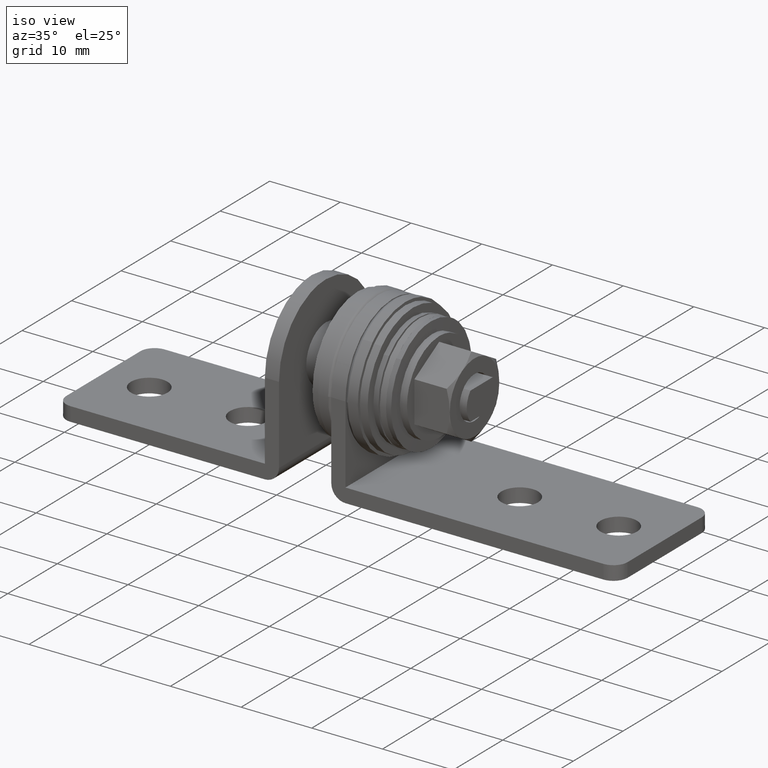
[diagram: clean part render]
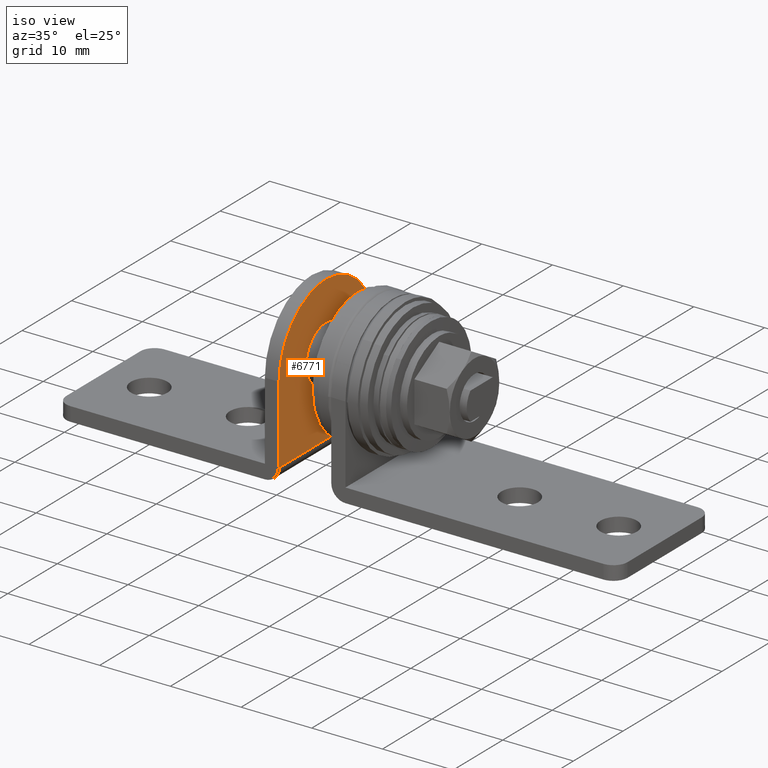
[diagram: same view with one face highlighted and labeled with its STEP entity id]
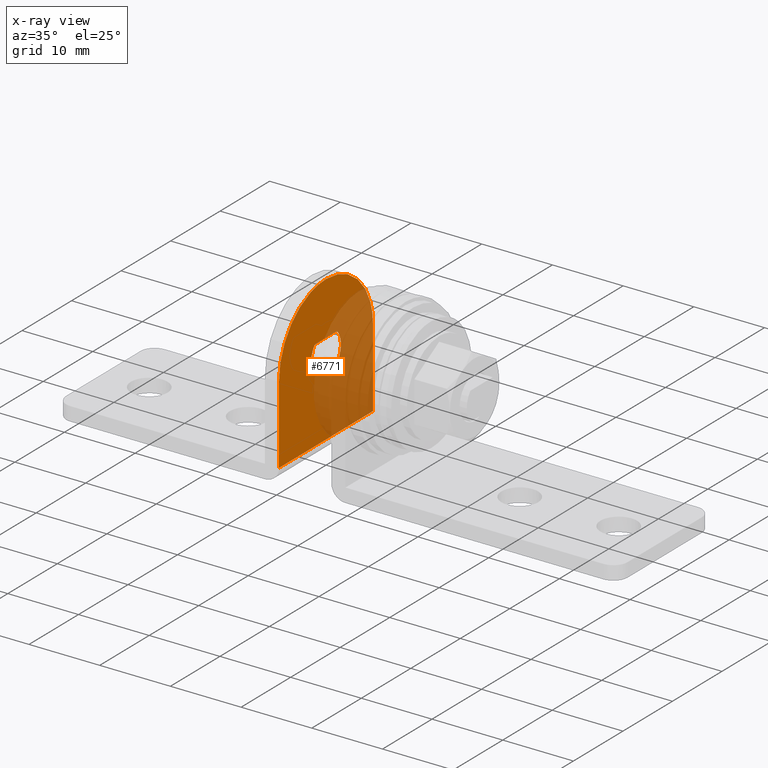
[diagram: x-ray of the same camera — body ghosted, the highlighted face saturated]
A machine part, iso view. The second image highlights one B-rep face of the part: STEP entity #6771.
The next image is the same camera in x-ray: the body ghosted, the highlighted face saturated — about 46% of this face is hidden behind the body in this view.
In plain terms, the highlighted face is a freeform B-spline surface patch.
Its self-contained STEP definition (entity closure, byte-faithful):
#6199=CARTESIAN_POINT('',(0.0,2.240535650240810,2.010000000000000));
#6200=VERTEX_POINT('',#6199);
#6206=CARTESIAN_POINT('',(0.0,-2.240535650240810,2.010000000000000));
#6207=VERTEX_POINT('',#6206);
#6208=CARTESIAN_POINT('',(0.0,-2.240535650240810,2.010000000000000));
#6209=CARTESIAN_POINT('',(0.0,2.240535650240810,2.010000000000000));
#6210=QUASI_UNIFORM_CURVE('',1,(#6208,#6209),.UNSPECIFIED.,.F.,.U.);
#6211=EDGE_CURVE('',#6207,#6200,#6210,.T.);
#6251=CARTESIAN_POINT('',(0.0,-2.240535650240810,-2.010000000000000));
#6252=VERTEX_POINT('',#6251);
#6253=CARTESIAN_POINT('',(0.0,-2.240535650240810,-2.010000000000000));
#6254=CARTESIAN_POINT('',(0.0,-2.370687013951511,-1.864956724034428));
#6255=CARTESIAN_POINT('',(0.0,-2.602659146373904,-1.549466092638324));
#6256=CARTESIAN_POINT('',(0.0,-2.857712093251740,-1.007575465955901));
#6257=CARTESIAN_POINT('',(0.0,-3.008339650027696,-0.391910474040547));
#6258=CARTESIAN_POINT('',(0.0,-3.024191929168532,0.300212688513874));
#6259=CARTESIAN_POINT('',(0.0,-2.882335169588626,0.943330478778173));
#6260=CARTESIAN_POINT('',(0.0,-2.614601133151809,1.529391881180201));
#6261=CARTESIAN_POINT('',(0.0,-2.386004348418033,1.847899174121345));
#6262=CARTESIAN_POINT('',(0.0,-2.240535650240810,2.010000000000000));
#6263=B_SPLINE_CURVE_WITH_KNOTS('',3,(#6253,#6254,#6255,#6256,#6257,#6258,#6259,#6260,#6261,#6262),.UNSPECIFIED.,.F.,.U.,(4,1,1,1,1,1,1,4),(0.000000084393577,0.584629031298991,1.169264270065292,1.788305855278447,2.476067994577040,3.232670253665715,3.748529401718613,4.401934657445459),.UNSPECIFIED.);
#6264=EDGE_CURVE('',#6252,#6207,#6263,.T.);
#6287=CARTESIAN_POINT('',(0.0,2.240535650240810,-2.010000000000000));
#6288=VERTEX_POINT('',#6287);
#6289=CARTESIAN_POINT('',(0.0,2.240535650240810,-2.010000000000000));
#6290=CARTESIAN_POINT('',(0.0,-2.240535650240810,-2.010000000000000));
#6291=QUASI_UNIFORM_CURVE('',1,(#6289,#6290),.UNSPECIFIED.,.F.,.U.);
#6292=EDGE_CURVE('',#6288,#6252,#6291,.T.);
#6329=CARTESIAN_POINT('',(0.0,2.240535650240810,2.010000000000000));
#6330=CARTESIAN_POINT('',(0.0,2.370686949797442,1.864956642935068));
#6331=CARTESIAN_POINT('',(0.0,2.602654257858082,1.549464766257817));
#6332=CARTESIAN_POINT('',(0.0,2.877364688132855,0.965900686233380));
#6333=CARTESIAN_POINT('',(0.0,3.024193972510522,0.300209867733758));
#6334=CARTESIAN_POINT('',(0.0,3.009650152156564,-0.334227588496530));
#6335=CARTESIAN_POINT('',(0.0,2.881830274065986,-0.929912114117821));
#6336=CARTESIAN_POINT('',(0.0,2.648255119957206,-1.482564819581117));
#6337=CARTESIAN_POINT('',(0.0,2.386000152132124,-1.847896461484912));
#6338=CARTESIAN_POINT('',(0.0,2.240535650240810,-2.010000000000000));
#6339=B_SPLINE_CURVE_WITH_KNOTS('',3,(#6329,#6330,#6331,#6332,#6333,#6334,#6335,#6336,#6337,#6338),.UNSPECIFIED.,.F.,.U.,(4,1,1,1,1,1,1,4),(0.000000084394236,0.584629031299590,1.169264270065828,1.925866977572698,2.613628944511989,3.060714132455869,3.748529401718662,4.401934657445458),.UNSPECIFIED.);
#6340=EDGE_CURVE('',#6200,#6288,#6339,.T.);
#6362=CARTESIAN_POINT('',(0.0,-9.500000000000000,-11.0));
#6363=VERTEX_POINT('',#6362);
#6384=CARTESIAN_POINT('',(0.0,9.500000000000000,-11.0));
#6385=VERTEX_POINT('',#6384);
#6399=CARTESIAN_POINT('',(0.0,-9.500000000000000,-11.0));
#6400=CARTESIAN_POINT('',(0.0,9.500000000000000,-11.0));
#6401=QUASI_UNIFORM_CURVE('',1,(#6399,#6400),.UNSPECIFIED.,.F.,.U.);
#6402=EDGE_CURVE('',#6363,#6385,#6401,.T.);
#6545=CARTESIAN_POINT('',(0.0,-9.500000000000000,0.0));
#6546=VERTEX_POINT('',#6545);
#6547=CARTESIAN_POINT('',(0.0,0.000001091461113,9.499999999999938));
#6548=VERTEX_POINT('',#6547);
#6549=CARTESIAN_POINT('',(0.0,-9.500000000000000,0.0));
#6550=CARTESIAN_POINT('',(0.0,-9.500003318183513,0.310884976905478));
#6551=CARTESIAN_POINT('',(0.0,-9.483769695889885,0.641192700150575));
#6552=CARTESIAN_POINT('',(0.0,-9.448474520049363,0.989148912323931));
#6553=CARTESIAN_POINT('',(0.0,-9.441876839754892,1.047060006333372));
#6554=CARTESIAN_POINT('',(0.0,-9.433461362205861,1.124325464279339));
#6555=CARTESIAN_POINT('',(0.0,-9.381042335986884,1.548584628759609));
#6556=CARTESIAN_POINT('',(0.0,-9.218091619730876,2.409154602852212));
#6557=CARTESIAN_POINT('',(0.0,-8.747596656828319,3.833698001574915));
#6558=CARTESIAN_POINT('',(0.0,-7.890604841279710,5.413562974735553));
#6559=CARTESIAN_POINT('',(0.0,-7.016503091505712,6.439747960346733));
#6560=CARTESIAN_POINT('',(0.0,-6.508372830386429,6.920465713787933));
#6561=CARTESIAN_POINT('',(0.0,-6.465563808953458,6.960017956643205));
#6562=CARTESIAN_POINT('',(0.0,-6.408726773088409,7.013031695912032));
#6563=CARTESIAN_POINT('',(0.0,-6.163899464161124,7.234787628881228));
#6564=CARTESIAN_POINT('',(0.0,-5.893287565653375,7.456877011799310));
#6565=CARTESIAN_POINT('',(0.0,-5.628021684127183,7.653730645487397));
#6566=CARTESIAN_POINT('',(0.0,-5.549219250017572,7.710547134489664));
#6567=CARTESIAN_POINT('',(0.0,-5.486300433211820,7.756177097915343));
#6568=CARTESIAN_POINT('',(0.0,-5.422285380249799,7.800255181449959));
#6569=CARTESIAN_POINT('',(0.0,-5.358558641910932,7.844747360172597));
#6570=CARTESIAN_POINT('',(0.0,-4.924097395373821,8.138836519579929));
#6571=CARTESIAN_POINT('',(0.0,-4.076481458987952,8.618990066606738));
#6572=CARTESIAN_POINT('',(0.0,-2.913103769051570,9.067751050989960));
#6573=CARTESIAN_POINT('',(0.0,-1.554393824623596,9.408090445974985));
#6574=CARTESIAN_POINT('',(0.0,-0.621773637521252,9.500081772986434));
#6575=CARTESIAN_POINT('',(0.0,0.000001091461113,9.499999999999938));
#6576=B_SPLINE_CURVE_WITH_KNOTS('',3,(#6549,#6550,#6551,#6552,#6553,#6554,#6555,#6556,#6557,#6558,#6559,#6560,#6561,#6562,#6563,#6564,#6565,#6566,#6567,#6568,#6569,#6570,#6571,#6572,#6573,#6574,#6575),.UNSPECIFIED.,.F.,.U.,(4,1,1,1,1,1,1,1,1,1,1,1,1,1,1,1,1,1,1,1,1,1,1,1,4),(0.000122050610035,0.932778051672756,0.991050231640322,1.049341878705819,1.107633525771300,1.224216809621401,2.331767397000592,3.730757212724209,5.712672033202788,7.694543929214185,7.752814866855053,7.811106854332604,7.869398841810162,7.985982967734681,8.802071802152721,8.918655557875770,8.976947369781094,9.093521353887574,9.151812809082566,9.210104264277556,9.326687253871976,10.725685729326861,12.124685087904650,13.057350482140510,14.922650224941110),.UNSPECIFIED.);
#6577=EDGE_CURVE('',#6546,#6548,#6576,.T.);
#6579=CARTESIAN_POINT('',(0.0,9.500000000000000,1.163376E-015));
#6580=VERTEX_POINT('',#6579);
#6581=CARTESIAN_POINT('',(0.0,0.000001091461113,9.499999999999938));
#6582=CARTESIAN_POINT('',(0.0,0.310886009122561,9.500003355353954));
#6583=CARTESIAN_POINT('',(0.0,0.641193772578246,9.483769769902537));
#6584=CARTESIAN_POINT('',(0.0,0.989149924436346,9.448474634560188));
#6585=CARTESIAN_POINT('',(0.0,1.047060945286385,9.441876608246961));
#6586=CARTESIAN_POINT('',(0.0,1.124325392827660,9.433454422748781));
#6587=CARTESIAN_POINT('',(0.0,1.702870591799936,9.362057915908570));
#6588=CARTESIAN_POINT('',(0.0,2.636899859698745,9.161267907824662));
#6589=CARTESIAN_POINT('',(0.0,3.968959937997717,8.666131704462480));
#6590=CARTESIAN_POINT('',(0.0,5.408249566332641,7.885494015070102));
#6591=CARTESIAN_POINT('',(0.0,6.386355625471657,7.072995536471092));
#6592=CARTESIAN_POINT('',(0.0,6.920454074211022,6.508360322927003));
#6593=CARTESIAN_POINT('',(0.0,6.960018576828182,6.465564535275973));
#6594=CARTESIAN_POINT('',(0.0,7.013032416149248,6.408727626274219));
#6595=CARTESIAN_POINT('',(0.0,7.234788299329907,6.163900302950519));
#6596=CARTESIAN_POINT('',(0.0,7.456877648811186,5.893288415622908));
#6597=CARTESIAN_POINT('',(0.0,7.653731236117690,5.628022533023431));
#6598=CARTESIAN_POINT('',(0.0,7.710547717005661,5.549220102839096));
#6599=CARTESIAN_POINT('',(0.0,7.756177647830609,5.486301272844214));
#6600=CARTESIAN_POINT('',(0.0,7.800255802456206,5.422286271717768));
#6601=CARTESIAN_POINT('',(0.0,7.844750346102920,5.358561108452704));
#6602=CARTESIAN_POINT('',(0.0,8.095247080006555,4.988449231646881));
#6603=CARTESIAN_POINT('',(0.0,8.546172053390199,4.214773353313949));
#6604=CARTESIAN_POINT('',(0.0,8.993526323080845,3.134763348639575));
#6605=CARTESIAN_POINT('',(0.0,9.387878791024825,1.709819124595866));
#6606=CARTESIAN_POINT('',(0.0,9.500135840824266,0.699503600662537));
#6607=CARTESIAN_POINT('',(0.0,9.500000000000000,1.163376E-015));
#6608=B_SPLINE_CURVE_WITH_KNOTS('',3,(#6581,#6582,#6583,#6584,#6585,#6586,#6587,#6588,#6589,#6590,#6591,#6592,#6593,#6594,#6595,#6596,#6597,#6598,#6599,#6600,#6601,#6602,#6603,#6604,#6605,#6606,#6607),.UNSPECIFIED.,.F.,.U.,(4,1,1,1,1,1,1,1,1,1,1,1,1,1,1,1,1,1,1,1,1,1,1,1,4),(0.000122050691978,0.932777974755250,0.991050150001547,1.049341792263169,1.107633434524807,1.224216708766820,2.798095504104591,3.963922865187906,5.479504995041630,7.694543293798724,7.752814227754239,7.811106210467458,7.869398193180675,7.985982309569892,8.802071077028737,8.918654823155473,8.976946630259054,9.093520603788431,9.151812054192519,9.210103504596594,9.326686484605673,10.492518311490009,11.891517578611460,12.824183267023971,14.922648994602341),.UNSPECIFIED.);
#6609=EDGE_CURVE('',#6548,#6580,#6608,.T.);
#6745=CARTESIAN_POINT('',(0.0,10.449049963174311,10.523974960266960));
#6746=CARTESIAN_POINT('',(0.0,-10.449050472794029,10.523974960266960));
#6747=CARTESIAN_POINT('',(0.0,10.449049963174311,-12.023975510119870));
#6748=CARTESIAN_POINT('',(0.0,-10.449050472794029,-12.023975510119870));
#6749=B_SPLINE_SURFACE_WITH_KNOTS('',1,1,((#6745,#6747),(#6746,#6748)),.UNSPECIFIED.,.F.,.F.,.U.,(2,2),(2,2),(0.0,20.898100435968342),(0.0,22.547950470386830),.UNSPECIFIED.);
#6750=CARTESIAN_POINT('',(0.0,-9.500000000000000,0.0));
#6751=CARTESIAN_POINT('',(0.0,-9.500000000000000,-11.0));
#6752=QUASI_UNIFORM_CURVE('',1,(#6750,#6751),.UNSPECIFIED.,.F.,.U.);
#6753=EDGE_CURVE('',#6546,#6363,#6752,.T.);
#6754=ORIENTED_EDGE('',*,*,#6753,.T.);
#6755=ORIENTED_EDGE('',*,*,#6402,.T.);
#6756=CARTESIAN_POINT('',(0.0,9.500000000000000,-11.0));
#6757=CARTESIAN_POINT('',(0.0,9.500000000000000,1.163376E-015));
#6758=QUASI_UNIFORM_CURVE('',1,(#6756,#6757),.UNSPECIFIED.,.F.,.U.);
#6759=EDGE_CURVE('',#6385,#6580,#6758,.T.);
#6760=ORIENTED_EDGE('',*,*,#6759,.T.);
#6761=ORIENTED_EDGE('',*,*,#6609,.F.);
#6762=ORIENTED_EDGE('',*,*,#6577,.F.);
#6763=EDGE_LOOP('',(#6754,#6755,#6760,#6761,#6762));
#6764=FACE_OUTER_BOUND('',#6763,.T.);
#6765=ORIENTED_EDGE('',*,*,#6340,.T.);
#6766=ORIENTED_EDGE('',*,*,#6292,.T.);
#6767=ORIENTED_EDGE('',*,*,#6264,.T.);
#6768=ORIENTED_EDGE('',*,*,#6211,.T.);
#6769=EDGE_LOOP('',(#6765,#6766,#6767,#6768));
#6770=FACE_BOUND('',#6769,.T.);
#6771=ADVANCED_FACE('',(#6764,#6770),#6749,.T.);